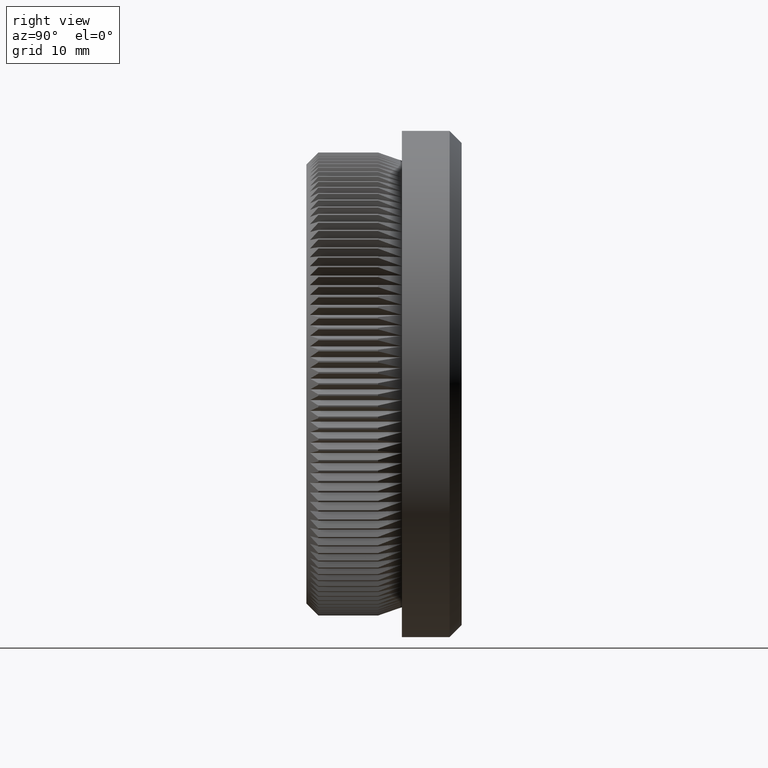
[diagram: clean part render]
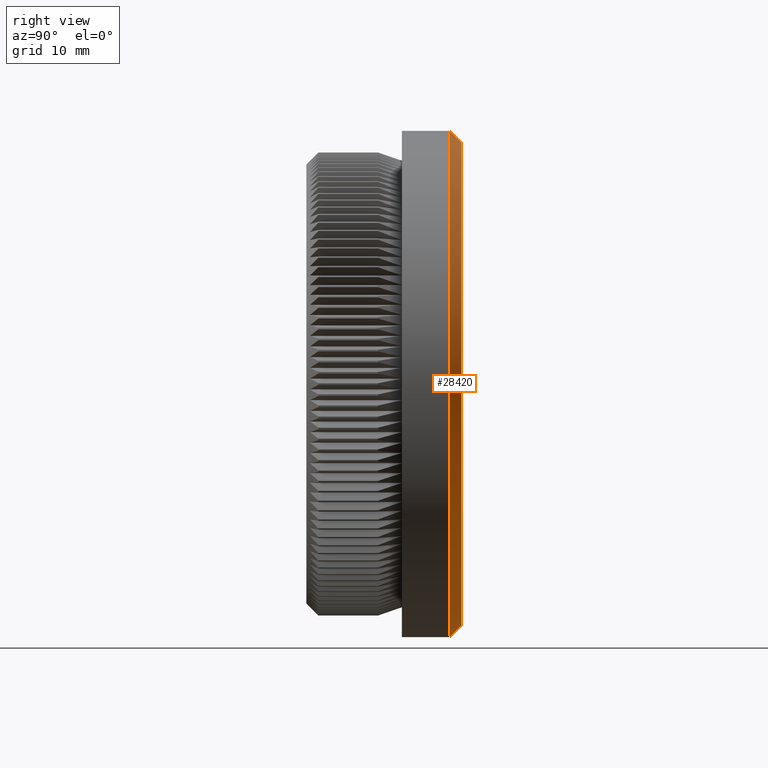
[diagram: same view with one face highlighted and labeled with its STEP entity id]
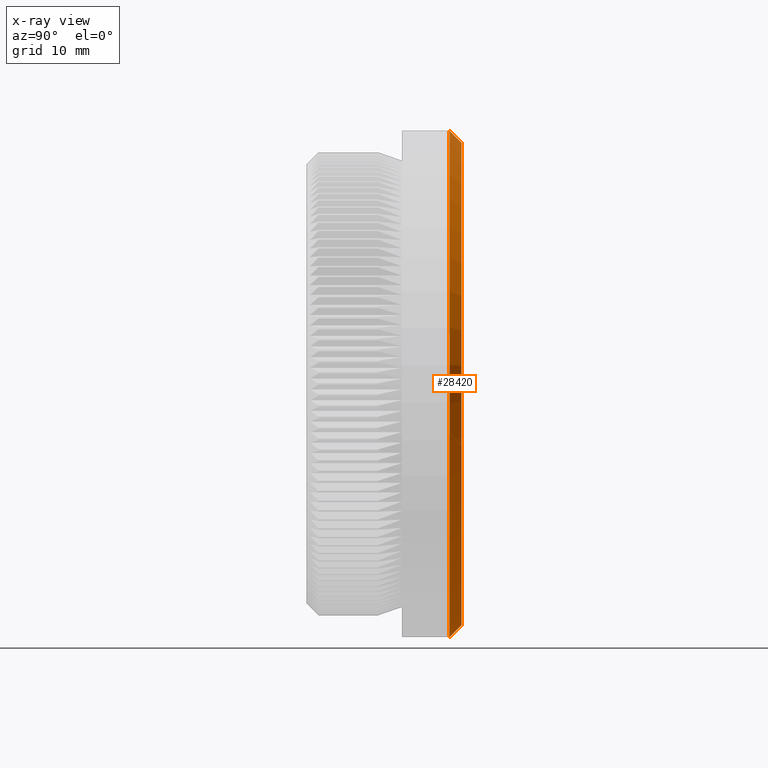
[diagram: x-ray of the same camera — body ghosted, the highlighted face saturated]
A machine part, right view. The second image highlights one B-rep face of the part: STEP entity #28420.
The next image is the same camera in x-ray: the body ghosted, the highlighted face saturated — about 0% of this face is hidden behind the body in this view.
In plain terms, the highlighted conical surface has half-angle 45 deg.
Its self-contained STEP definition (entity closure, byte-faithful):
#270 = EDGE_CURVE ( 'NONE', #12811, #2141, #25950, .T. ) ;
#1326 = AXIS2_PLACEMENT_3D ( 'NONE', #5891, #10841, #8001 ) ;
#1464 = DIRECTION ( 'NONE',  ( -0.0000000000000000000, -1.000000000000000000, -0.0000000000000000000 ) ) ;
#2141 = VERTEX_POINT ( 'NONE', #7194 ) ;
#2172 = ORIENTED_EDGE ( 'NONE', *, *, #27667, .F. ) ;
#3528 = LINE ( 'NONE', #32346, #22820 ) ;
#4402 = AXIS2_PLACEMENT_3D ( 'NONE', #22995, #13084, #8830 ) ;
#5891 = CARTESIAN_POINT ( 'NONE',  ( 0.0000000000000000000, 11.99999999999999800, 0.0000000000000000000 ) ) ;
#7194 = CARTESIAN_POINT ( 'NONE',  ( 2.596251214192388800E-015, 11.99999999999999800, 21.19999999999999900 ) ) ;
#7784 = VERTEX_POINT ( 'NONE', #29513 ) ;
#8001 = DIRECTION ( 'NONE',  ( 0.0000000000000000000, 0.0000000000000000000, 1.000000000000000000 ) ) ;
#8249 = DIRECTION ( 'NONE',  ( 8.659560562354962400E-017, -0.7071067811865451300, 0.7071067811865500200 ) ) ;
#8830 = DIRECTION ( 'NONE',  ( 0.0000000000000000000, 0.0000000000000000000, 1.000000000000000000 ) ) ;
#8872 = DIRECTION ( 'NONE',  ( 0.0000000000000000000, 0.0000000000000000000, -1.000000000000000000 ) ) ;
#9858 = VECTOR ( 'NONE', #8249, 1000.000000000000100 ) ;
#10001 = DIRECTION ( 'NONE',  ( 0.0000000000000000000, -0.7071067811865451300, -0.7071067811865500200 ) ) ;
#10841 = DIRECTION ( 'NONE',  ( -0.0000000000000000000, -1.000000000000000000, -0.0000000000000000000 ) ) ;
#12484 = CONICAL_SURFACE ( 'NONE', #30196, 21.19999999999999900, 0.7853981633974517200 ) ;
#12811 = VERTEX_POINT ( 'NONE', #15823 ) ;
#13084 = DIRECTION ( 'NONE',  ( 0.0000000000000000000, 1.000000000000000000, 0.0000000000000000000 ) ) ;
#14161 = EDGE_LOOP ( 'NONE', ( #30356, #22018, #2172, #29042 ) ) ;
#14492 = CIRCLE ( 'NONE', #1326, 21.19999999999999900 ) ;
#15637 = VERTEX_POINT ( 'NONE', #26800 ) ;
#15823 = CARTESIAN_POINT ( 'NONE',  ( 2.535018874235020400E-015, 13.00000000000000000, 20.19999999999999200 ) ) ;
#20356 = EDGE_CURVE ( 'NONE', #12811, #7784, #22591, .T. ) ;
#22018 = ORIENTED_EDGE ( 'NONE', *, *, #270, .T. ) ;
#22591 = CIRCLE ( 'NONE', #4402, 20.19999999999999200 ) ;
#22820 = VECTOR ( 'NONE', #10001, 1000.000000000000100 ) ;
#22995 = CARTESIAN_POINT ( 'NONE',  ( 0.0000000000000000000, 13.00000000000000000, 0.0000000000000000000 ) ) ;
#23797 = CARTESIAN_POINT ( 'NONE',  ( 0.0000000000000000000, 11.99999999999999800, 0.0000000000000000000 ) ) ;
#25850 = EDGE_CURVE ( 'NONE', #7784, #15637, #3528, .T. ) ;
#25950 = LINE ( 'NONE', #30593, #9858 ) ;
#26800 = CARTESIAN_POINT ( 'NONE',  ( 0.0000000000000000000, 11.99999999999999800, -21.19999999999999900 ) ) ;
#27667 = EDGE_CURVE ( 'NONE', #15637, #2141, #14492, .T. ) ;
#27870 = FACE_OUTER_BOUND ( 'NONE', #14161, .T. ) ;
#28420 = ADVANCED_FACE ( 'NONE', ( #27870 ), #12484, .T. ) ;
#29042 = ORIENTED_EDGE ( 'NONE', *, *, #25850, .F. ) ;
#29513 = CARTESIAN_POINT ( 'NONE',  ( 0.0000000000000000000, 13.00000000000000000, -20.19999999999999200 ) ) ;
#30196 = AXIS2_PLACEMENT_3D ( 'NONE', #23797, #1464, #8872 ) ;
#30356 = ORIENTED_EDGE ( 'NONE', *, *, #20356, .F. ) ;
#30593 = CARTESIAN_POINT ( 'NONE',  ( 2.596251214192388800E-015, 11.99999999999999800, 21.19999999999999900 ) ) ;
#32346 = CARTESIAN_POINT ( 'NONE',  ( 0.0000000000000000000, 11.99999999999999800, -21.19999999999999900 ) ) ;